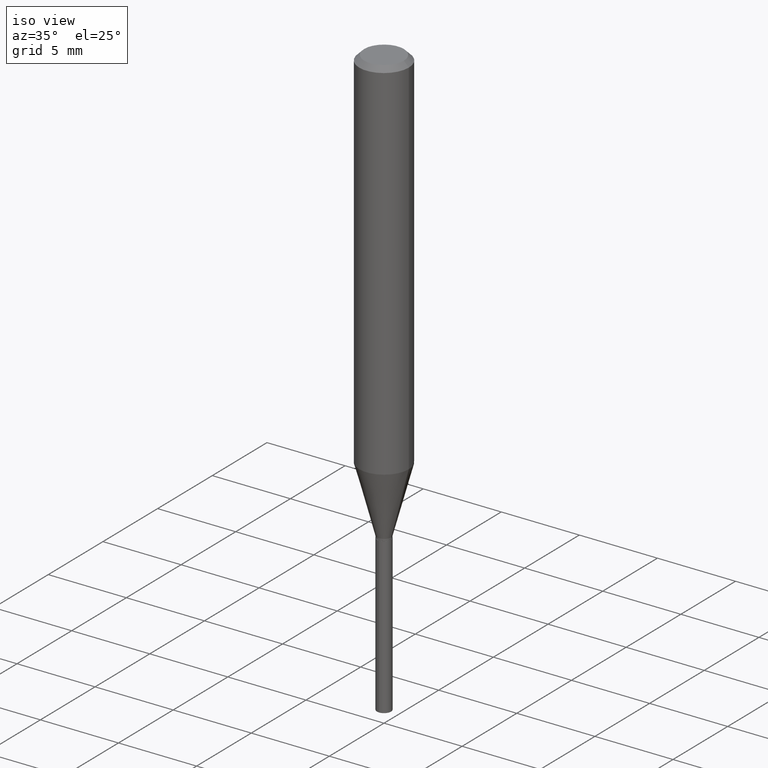
[diagram: clean part render]
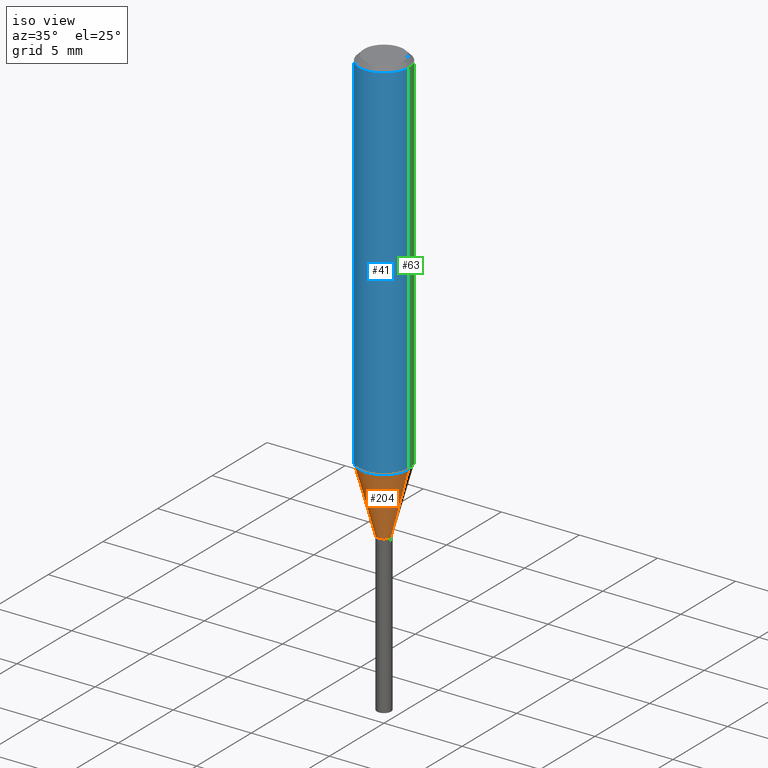
[diagram: same view with three faces highlighted in distinct colors, each labeled with its STEP entity id]
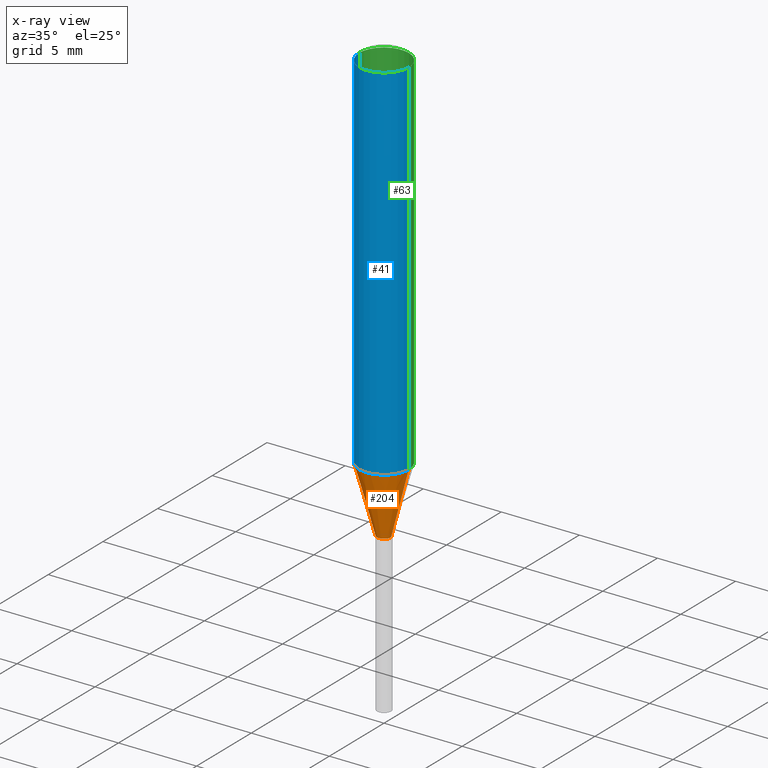
[diagram: x-ray of the same camera — body ghosted, the three highlighted faces saturated]
A machine part, iso view with three faces highlighted in distinct colors.
The next image is the same camera in x-ray (body ghosted, the three faces saturated) — at least one of them is partly hidden behind the body in this view.
Their STEP definitions:

[orange] entity #204 — the highlighted conical surface has half-angle 15 deg.
#8 = VERTEX_POINT ( 'NONE', #40 ) ;
#16 = LINE ( 'NONE', #428, #79 ) ;
#24 = ORIENTED_EDGE ( 'NONE', *, *, #73, .T. ) ;
#27 = DIRECTION ( 'NONE',  ( -2.445468806185136597E-29, 3.491481338843145583E-15, 1.000000000000000000 ) ) ;
#36 = CONICAL_SURFACE ( 'NONE', #372, 0.01770000000000000046, 0.2617993877991499629 ) ;
#40 = CARTESIAN_POINT ( 'NONE',  ( -0.06250000000000012490, -2.794274130170721718E-15, -0.9275041238209144057 ) ) ;
#61 = AXIS2_PLACEMENT_3D ( 'NONE', #294, #440, #334 ) ;
#62 = CARTESIAN_POINT ( 'NONE',  ( 2.268182402412122745E-29, -3.238363340020784728E-15, -0.9275041238209144057 ) ) ;
#73 = EDGE_CURVE ( 'NONE', #264, #302, #16, .T. ) ;
#79 = VECTOR ( 'NONE', #288, 39.37007874015748854 ) ;
#96 = AXIS2_PLACEMENT_3D ( 'NONE', #62, #320, #431 ) ;
#110 = DIRECTION ( 'NONE',  ( 1.000000000000000000, -6.982962677686271444E-15, 0.000000000000000000 ) ) ;
#115 = CIRCLE ( 'NONE', #96, 0.06250000000000011102 ) ;
#141 = CARTESIAN_POINT ( 'NONE',  ( 2.677054702130869363E-29, -3.822124621631592164E-15, -1.094700000000000228 ) ) ;
#152 = ORIENTED_EDGE ( 'NONE', *, *, #162, .F. ) ;
#162 = EDGE_CURVE ( 'NONE', #8, #302, #115, .T. ) ;
#177 = VECTOR ( 'NONE', #221, 39.37007874015748854 ) ;
#197 = EDGE_CURVE ( 'NONE', #313, #264, #365, .T. ) ;
#204 = ADVANCED_FACE ( 'NONE', ( #218 ), #36, .T. ) ;
#218 = FACE_OUTER_BOUND ( 'NONE', #351, .T. ) ;
#221 = DIRECTION ( 'NONE',  ( -0.2588190451025212391, 5.211531920934549464E-15, 0.9659258262890679791 ) ) ;
#244 = ORIENTED_EDGE ( 'NONE', *, *, #197, .T. ) ;
#264 = VERTEX_POINT ( 'NONE', #479 ) ;
#288 = DIRECTION ( 'NONE',  ( 0.2588190451025212391, 1.565188264969622362E-15, 0.9659258262890679791 ) ) ;
#294 = CARTESIAN_POINT ( 'NONE',  ( 2.677054702130869363E-29, -3.822124621631592164E-15, -1.094700000000000228 ) ) ;
#302 = VERTEX_POINT ( 'NONE', #447 ) ;
#310 = EDGE_CURVE ( 'NONE', #313, #8, #368, .T. ) ;
#313 = VERTEX_POINT ( 'NONE', #363 ) ;
#320 = DIRECTION ( 'NONE',  ( -2.445468806185136597E-29, 3.491481338843145583E-15, 1.000000000000000000 ) ) ;
#334 = DIRECTION ( 'NONE',  ( 1.000000000000000000, -6.982962677686271444E-15, 0.000000000000000000 ) ) ;
#351 = EDGE_LOOP ( 'NONE', ( #449, #244, #24, #152 ) ) ;
#363 = CARTESIAN_POINT ( 'NONE',  ( -0.01770000000000000046, -3.704738112615278088E-15, -1.094700000000000228 ) ) ;
#365 = CIRCLE ( 'NONE', #61, 0.01770000000000000046 ) ;
#368 = LINE ( 'NONE', #400, #177 ) ;
#372 = AXIS2_PLACEMENT_3D ( 'NONE', #141, #27, #110 ) ;
#400 = CARTESIAN_POINT ( 'NONE',  ( -0.01770000000000000046, -3.696358557402054871E-15, -1.094700000000000228 ) ) ;
#428 = CARTESIAN_POINT ( 'NONE',  ( 0.01770000000000000046, -3.945723061026639349E-15, -1.094700000000000228 ) ) ;
#431 = DIRECTION ( 'NONE',  ( 1.000000000000000000, -6.982962677686265922E-15, 0.000000000000000000 ) ) ;
#440 = DIRECTION ( 'NONE',  ( -2.445468806185136597E-29, 3.491481338843145583E-15, 1.000000000000000000 ) ) ;
#447 = CARTESIAN_POINT ( 'NONE',  ( 0.06250000000000012490, -3.674798507376177581E-15, -0.9275041238209144057 ) ) ;
#449 = ORIENTED_EDGE ( 'NONE', *, *, #310, .F. ) ;
#479 = CARTESIAN_POINT ( 'NONE',  ( 0.01770000000000000046, -3.945723061026639349E-15, -1.094700000000000228 ) ) ;

[blue] entity #41 — the highlighted cylindrical surface (edge-blend (fillet) strip) has radius 1.5875 mm, axis along (-0, 0, 1).
#8 = VERTEX_POINT ( 'NONE', #40 ) ;
#11 = CARTESIAN_POINT ( 'NONE',  ( -0.06250000000000000000, -1.196914218528098543E-15, -0.01250000000000008049 ) ) ;
#17 = EDGE_CURVE ( 'NONE', #147, #364, #452, .T. ) ;
#30 = CARTESIAN_POINT ( 'NONE',  ( -0.06250000000000005551, 4.440892098500630106E-16, -3.074334431409318916E-30 ) ) ;
#40 = CARTESIAN_POINT ( 'NONE',  ( -0.06250000000000012490, -2.794274130170721718E-15, -0.9275041238209144057 ) ) ;
#41 = ADVANCED_FACE ( 'NONE', ( #272 ), #80, .T. ) ;
#46 = DIRECTION ( 'NONE',  ( 1.000000000000000000, -6.982962677686266711E-15, 0.000000000000000000 ) ) ;
#62 = CARTESIAN_POINT ( 'NONE',  ( 2.268182402412122745E-29, -3.238363340020784728E-15, -0.9275041238209144057 ) ) ;
#80 = CYLINDRICAL_SURFACE ( 'NONE', #398, 0.06250000000000005551 ) ;
#83 = DIRECTION ( 'NONE',  ( -2.445468806185136597E-29, 3.491481338843145583E-15, 1.000000000000000000 ) ) ;
#96 = AXIS2_PLACEMENT_3D ( 'NONE', #62, #320, #431 ) ;
#115 = CIRCLE ( 'NONE', #96, 0.06250000000000011102 ) ;
#122 = EDGE_LOOP ( 'NONE', ( #414, #319, #480, #331 ) ) ;
#132 = DIRECTION ( 'NONE',  ( -2.445468806185136597E-29, 3.491481338843145583E-15, 1.000000000000000000 ) ) ;
#147 = VERTEX_POINT ( 'NONE', #11 ) ;
#148 = DIRECTION ( 'NONE',  ( -2.445468806185136877E-29, 3.491481338843145188E-15, 1.000000000000000000 ) ) ;
#162 = EDGE_CURVE ( 'NONE', #8, #302, #115, .T. ) ;
#185 = LINE ( 'NONE', #483, #247 ) ;
#202 = VECTOR ( 'NONE', #406, 39.37007874015748143 ) ;
#212 = AXIS2_PLACEMENT_3D ( 'NONE', #277, #83, #46 ) ;
#234 = CARTESIAN_POINT ( 'NONE',  ( 0.000000000000000000, 0.000000000000000000, 0.000000000000000000 ) ) ;
#247 = VECTOR ( 'NONE', #148, 39.37007874015748143 ) ;
#265 = LINE ( 'NONE', #30, #202 ) ;
#272 = FACE_OUTER_BOUND ( 'NONE', #122, .T. ) ;
#275 = EDGE_CURVE ( 'NONE', #8, #147, #265, .T. ) ;
#277 = CARTESIAN_POINT ( 'NONE',  ( 3.056836007731440539E-31, -4.364351673553960451E-17, -0.01250000000000008049 ) ) ;
#296 = CARTESIAN_POINT ( 'NONE',  ( 0.06250000000000000000, -4.800786840909312308E-16, -0.01250000000000008049 ) ) ;
#302 = VERTEX_POINT ( 'NONE', #447 ) ;
#319 = ORIENTED_EDGE ( 'NONE', *, *, #162, .T. ) ;
#320 = DIRECTION ( 'NONE',  ( -2.445468806185136597E-29, 3.491481338843145583E-15, 1.000000000000000000 ) ) ;
#323 = EDGE_CURVE ( 'NONE', #302, #364, #185, .T. ) ;
#331 = ORIENTED_EDGE ( 'NONE', *, *, #17, .F. ) ;
#359 = DIRECTION ( 'NONE',  ( 1.000000000000000000, -6.982962677686266711E-15, 4.876176775795935232E-29 ) ) ;
#364 = VERTEX_POINT ( 'NONE', #296 ) ;
#398 = AXIS2_PLACEMENT_3D ( 'NONE', #234, #132, #359 ) ;
#406 = DIRECTION ( 'NONE',  ( -2.445468806185136877E-29, 3.491481338843145188E-15, 1.000000000000000000 ) ) ;
#414 = ORIENTED_EDGE ( 'NONE', *, *, #275, .F. ) ;
#431 = DIRECTION ( 'NONE',  ( 1.000000000000000000, -6.982962677686265922E-15, 0.000000000000000000 ) ) ;
#447 = CARTESIAN_POINT ( 'NONE',  ( 0.06250000000000012490, -3.674798507376177581E-15, -0.9275041238209144057 ) ) ;
#452 = CIRCLE ( 'NONE', #212, 0.06250000000000000000 ) ;
#480 = ORIENTED_EDGE ( 'NONE', *, *, #323, .T. ) ;
#483 = CARTESIAN_POINT ( 'NONE',  ( 0.06250000000000005551, -4.364351673553920638E-16, 3.047610484872462323E-30 ) ) ;

[green] entity #63 — the highlighted cylindrical surface (edge-blend (fillet) strip) has radius 1.5875 mm, axis along (-0, 0, 1).
#8 = VERTEX_POINT ( 'NONE', #40 ) ;
#11 = CARTESIAN_POINT ( 'NONE',  ( -0.06250000000000000000, -1.196914218528098543E-15, -0.01250000000000008049 ) ) ;
#18 = CARTESIAN_POINT ( 'NONE',  ( 0.000000000000000000, 0.000000000000000000, 0.000000000000000000 ) ) ;
#19 = DIRECTION ( 'NONE',  ( -2.445468806185136597E-29, 3.491481338843145583E-15, 1.000000000000000000 ) ) ;
#30 = CARTESIAN_POINT ( 'NONE',  ( -0.06250000000000005551, 4.440892098500630106E-16, -3.074334431409318916E-30 ) ) ;
#34 = CIRCLE ( 'NONE', #411, 0.06250000000000000000 ) ;
#40 = CARTESIAN_POINT ( 'NONE',  ( -0.06250000000000012490, -2.794274130170721718E-15, -0.9275041238209144057 ) ) ;
#43 = ORIENTED_EDGE ( 'NONE', *, *, #419, .F. ) ;
#63 = ADVANCED_FACE ( 'NONE', ( #170 ), #256, .T. ) ;
#74 = ORIENTED_EDGE ( 'NONE', *, *, #275, .T. ) ;
#105 = DIRECTION ( 'NONE',  ( 1.000000000000000000, -6.982962677686265922E-15, 0.000000000000000000 ) ) ;
#126 = EDGE_CURVE ( 'NONE', #302, #8, #460, .T. ) ;
#147 = VERTEX_POINT ( 'NONE', #11 ) ;
#148 = DIRECTION ( 'NONE',  ( -2.445468806185136877E-29, 3.491481338843145188E-15, 1.000000000000000000 ) ) ;
#170 = FACE_OUTER_BOUND ( 'NONE', #484, .T. ) ;
#185 = LINE ( 'NONE', #483, #247 ) ;
#202 = VECTOR ( 'NONE', #406, 39.37007874015748143 ) ;
#247 = VECTOR ( 'NONE', #148, 39.37007874015748143 ) ;
#256 = CYLINDRICAL_SURFACE ( 'NONE', #488, 0.06250000000000005551 ) ;
#265 = LINE ( 'NONE', #30, #202 ) ;
#275 = EDGE_CURVE ( 'NONE', #8, #147, #265, .T. ) ;
#296 = CARTESIAN_POINT ( 'NONE',  ( 0.06250000000000000000, -4.800786840909312308E-16, -0.01250000000000008049 ) ) ;
#302 = VERTEX_POINT ( 'NONE', #447 ) ;
#318 = ORIENTED_EDGE ( 'NONE', *, *, #323, .F. ) ;
#321 = CARTESIAN_POINT ( 'NONE',  ( 2.268182402412122745E-29, -3.238363340020784728E-15, -0.9275041238209144057 ) ) ;
#323 = EDGE_CURVE ( 'NONE', #302, #364, #185, .T. ) ;
#345 = DIRECTION ( 'NONE',  ( 1.000000000000000000, -6.982962677686266711E-15, 0.000000000000000000 ) ) ;
#364 = VERTEX_POINT ( 'NONE', #296 ) ;
#366 = AXIS2_PLACEMENT_3D ( 'NONE', #321, #19, #105 ) ;
#386 = DIRECTION ( 'NONE',  ( 1.000000000000000000, -6.982962677686266711E-15, 4.876176775795935232E-29 ) ) ;
#406 = DIRECTION ( 'NONE',  ( -2.445468806185136877E-29, 3.491481338843145188E-15, 1.000000000000000000 ) ) ;
#411 = AXIS2_PLACEMENT_3D ( 'NONE', #415, #423, #345 ) ;
#415 = CARTESIAN_POINT ( 'NONE',  ( 3.056836007731440539E-31, -4.364351673553960451E-17, -0.01250000000000008049 ) ) ;
#419 = EDGE_CURVE ( 'NONE', #364, #147, #34, .T. ) ;
#423 = DIRECTION ( 'NONE',  ( -2.445468806185136597E-29, 3.491481338843145583E-15, 1.000000000000000000 ) ) ;
#447 = CARTESIAN_POINT ( 'NONE',  ( 0.06250000000000012490, -3.674798507376177581E-15, -0.9275041238209144057 ) ) ;
#460 = CIRCLE ( 'NONE', #366, 0.06250000000000011102 ) ;
#464 = DIRECTION ( 'NONE',  ( -2.445468806185136597E-29, 3.491481338843145583E-15, 1.000000000000000000 ) ) ;
#483 = CARTESIAN_POINT ( 'NONE',  ( 0.06250000000000005551, -4.364351673553920638E-16, 3.047610484872462323E-30 ) ) ;
#484 = EDGE_LOOP ( 'NONE', ( #485, #74, #43, #318 ) ) ;
#485 = ORIENTED_EDGE ( 'NONE', *, *, #126, .T. ) ;
#488 = AXIS2_PLACEMENT_3D ( 'NONE', #18, #464, #386 ) ;